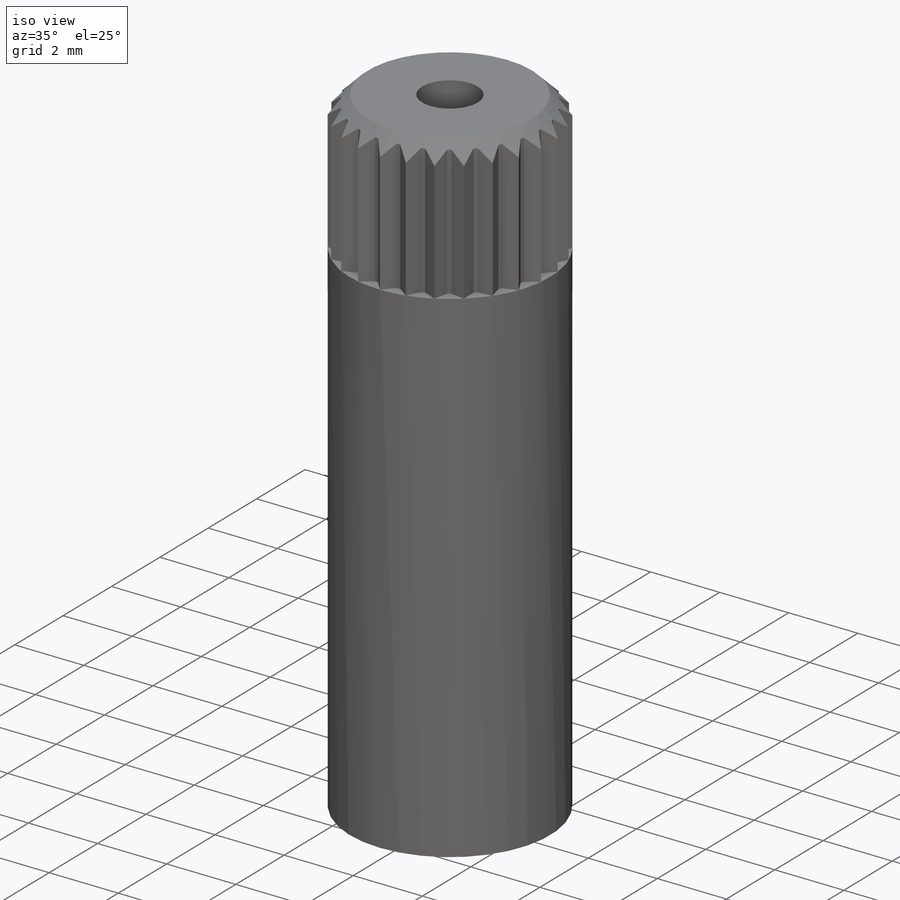
[diagram: iso view]
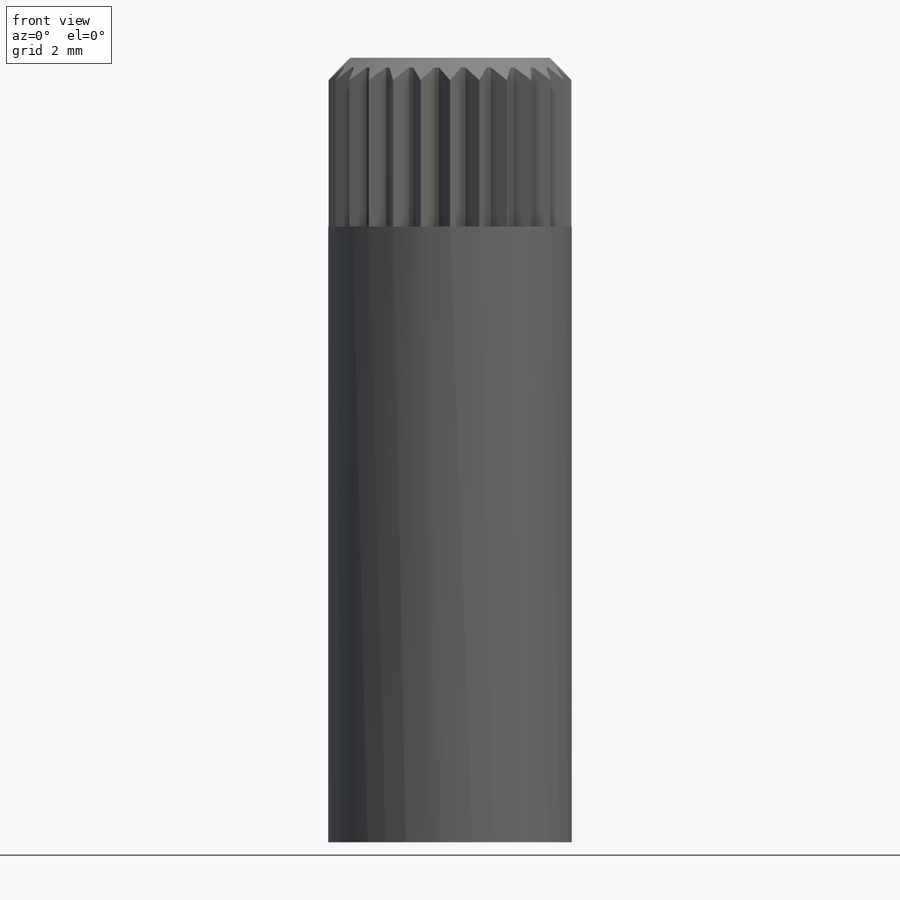
[diagram: front view]
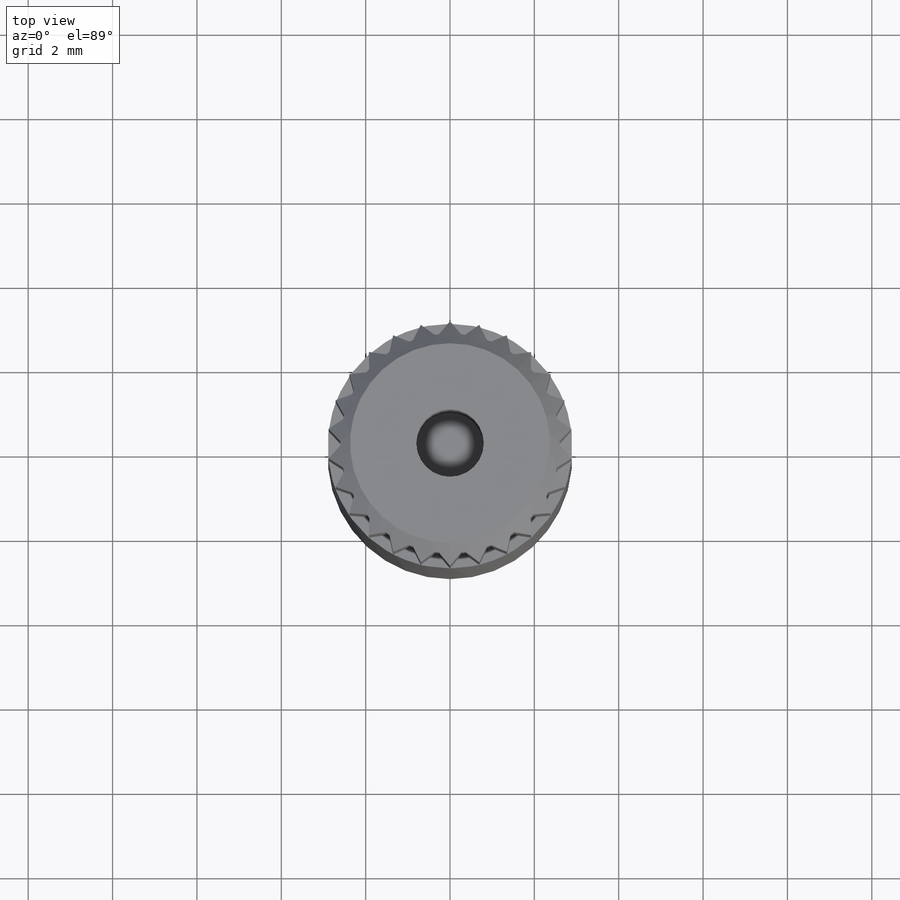
[diagram: top view]
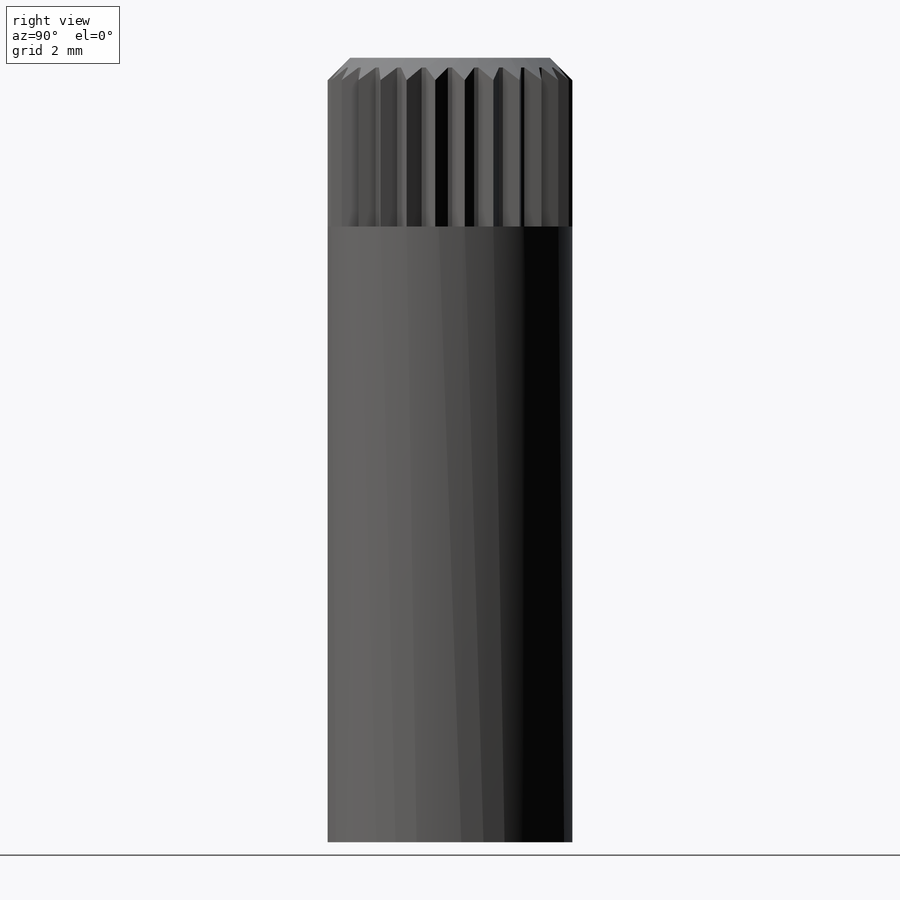
[diagram: right view]
SOLIDWORKS PART (.sldprt)
format: sldprt  version: not decoded by parser v0  size: 626,176 bytes
history: native  units: mm
features: sketch x5, extrude x3, material x1, pattern_circular x1, cut_revolve x1, cut_extrude x1, plane x1 (+13 scaffold rows collapsed)
feature tree (26):
  scaffold x13  (default folders/planes/origin — collapsed)
  material  "Polyethylene Cross-Linked"
  sketch  "Sketch12"  dims[D1=5.8mm]
  extrude  "Boss-Extrude4"  Depth=14.6mm
  sketch  "Sketch13"  dims[D1=0.3mm]
  extrude  "Boss-Extrude5"  Depth=4mm
  sketch  "Sketch14"  dims[c1.D2=~0.304374mm c2.D2=80.0deg c3.D2=0.6mm c3.D3=~0.317366mm c4.D3=~273.22246deg c5.D3=0.3mm c6.D3=~86.77754deg c6.D2=~0.436716mm c7.D2=~273.22246deg c8.D2=0.6mm c8.D3=~0.436716mm c9.D2=~0.436716mm c10.D2=~273.22246deg c11.D2=~0.436716mm c12.D2=80.0deg c12.D3=~0.525825mm c12.D4=0.3mm c12.D1=0.0mm]
  extrude  "Boss-Extrude6"  Depth=10mm
  pattern_circular  "CirPattern1"  Count=26 Angle=13.846154deg
  sketch  "Sketch15"  dims[c1.D1=~0.221796mm c2.D1=45.0deg c2.D2=0.75mm]
  cut_revolve  "Cut-Revolve1"  Angle=360deg
  sketch  "Sketch16"  dims[D1=1.6mm]
  cut_extrude  "Cut-Extrude1"  Depth=4mm
  plane  "Plane1"
decode coverage: 11 of 11 modeling features carry decoded parameters
note: ~ marks probable driven/reference dimensions
note: suppression state not decoded; provenance and decode notes live in map.json
